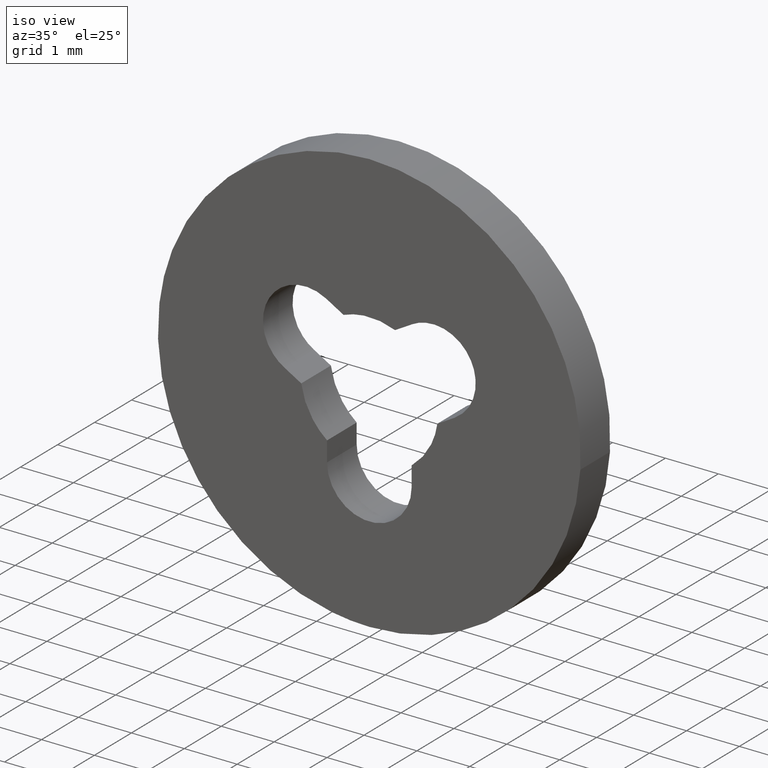
[diagram: clean part render]
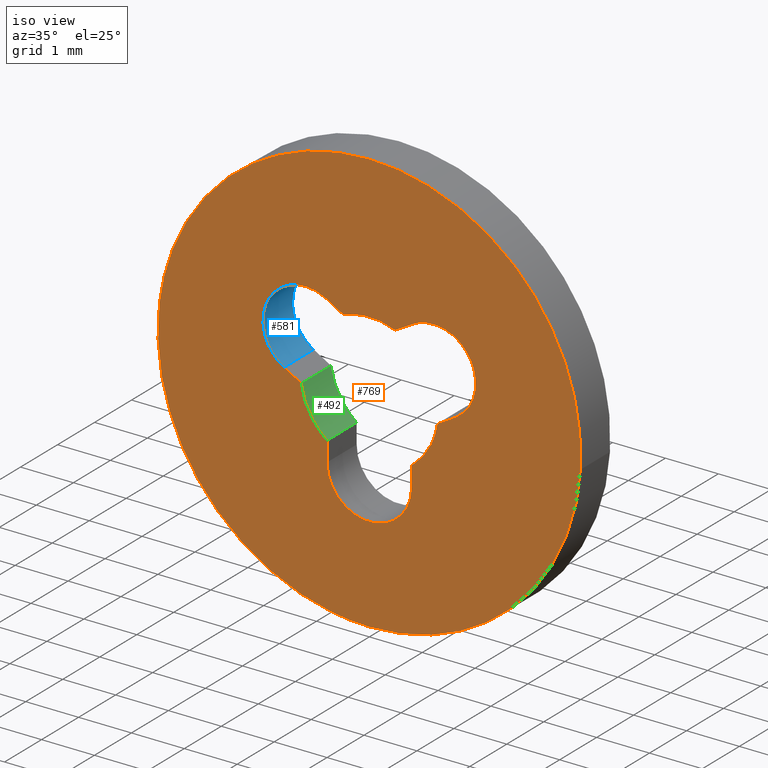
[diagram: same view with three faces highlighted in distinct colors, each labeled with its STEP entity id]
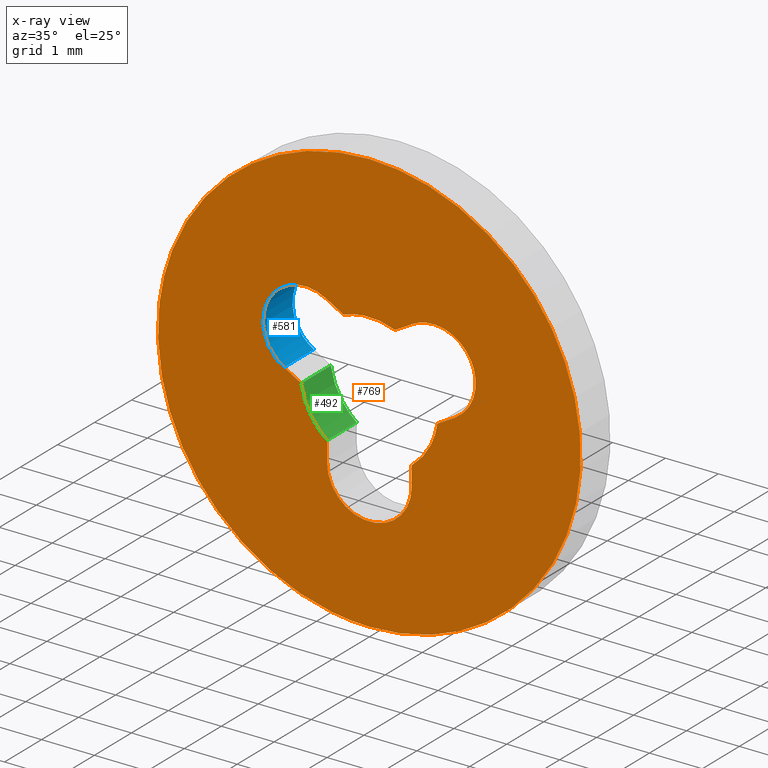
[diagram: x-ray of the same camera — body ghosted, the three highlighted faces saturated]
A machine part, iso view with three faces highlighted in distinct colors.
The next image is the same camera in x-ray (body ghosted, the three faces saturated) — at least one of them is partly hidden behind the body in this view.
Their STEP definitions:

[orange] entity #769 — the highlighted face is a freeform B-spline surface patch.
#66=CARTESIAN_POINT('',(-3.972038406107942,1.940217E-014,0.472134409249084));
#67=VERTEX_POINT('',#66);
#68=CARTESIAN_POINT('',(0.0,0.0,-4.0));
#69=VERTEX_POINT('',#68);
#70=CARTESIAN_POINT('',(-3.972038406107942,1.940217E-014,0.472134409249084));
#71=CARTESIAN_POINT('',(-4.000000000000001,0.0,0.236895200548656));
#72=CARTESIAN_POINT('',(-4.0,0.0,0.0));
#73=CARTESIAN_POINT('',(-4.000000000000000,0.0,-4.000000000000000));
#74=CARTESIAN_POINT('',(0.0,0.0,-4.0));
#82=(BOUNDED_CURVE()B_SPLINE_CURVE(2,(#70,#71,#72,#73,#74),.UNSPECIFIED.,.F.,.U.)B_SPLINE_CURVE_WITH_KNOTS((3,2,3),(0.229562581136241,0.250000000000000,0.500000000000000),.UNSPECIFIED.)CURVE()GEOMETRIC_REPRESENTATION_ITEM()RATIONAL_B_SPLINE_CURVE((0.956026965128767,0.976056074419019,1.0,0.707106781186548,1.0))REPRESENTATION_ITEM(''));
#83=EDGE_CURVE('',#67,#69,#82,.T.);
#124=CARTESIAN_POINT('',(3.992539281071392,1.277450E-014,-0.244192729416499));
#125=VERTEX_POINT('',#124);
#131=CARTESIAN_POINT('',(0.0,0.0,-4.0));
#132=CARTESIAN_POINT('',(3.762825616659059,0.0,-4.000000000000001));
#133=CARTESIAN_POINT('',(3.992539281071392,1.277450E-014,-0.244192729416499));
#141=(BOUNDED_CURVE()B_SPLINE_CURVE(2,(#131,#132,#133),.UNSPECIFIED.,.F.,.U.)B_SPLINE_CURVE_WITH_KNOTS((3,3),(0.500000000000000,0.739333023987528),.UNSPECIFIED.)CURVE()GEOMETRIC_REPRESENTATION_ITEM()RATIONAL_B_SPLINE_CURVE((1.0,0.719603920943743,0.976072174005725))REPRESENTATION_ITEM(''));
#142=EDGE_CURVE('',#69,#125,#141,.T.);
#165=CARTESIAN_POINT('',(0.0,0.0,4.0));
#166=VERTEX_POINT('',#165);
#167=CARTESIAN_POINT('',(0.0,0.0,4.0));
#168=CARTESIAN_POINT('',(-3.552700382076046,0.0,4.0));
#169=CARTESIAN_POINT('',(-3.972038406107942,1.940217E-014,0.472134409249084));
#177=(BOUNDED_CURVE()B_SPLINE_CURVE(2,(#167,#168,#169),.UNSPECIFIED.,.F.,.U.)B_SPLINE_CURVE_WITH_KNOTS((3,3),(0.0,0.229562581136241),.UNSPECIFIED.)CURVE()GEOMETRIC_REPRESENTATION_ITEM()RATIONAL_B_SPLINE_CURVE((1.0,0.731050706767529,0.956026965128767))REPRESENTATION_ITEM(''));
#178=EDGE_CURVE('',#166,#67,#177,.T.);
#180=CARTESIAN_POINT('',(3.992539281071392,1.277450E-014,-0.244192729416499));
#181=CARTESIAN_POINT('',(4.000000000000001,0.0,-0.122210336829911));
#182=CARTESIAN_POINT('',(4.0,0.0,0.0));
#183=CARTESIAN_POINT('',(4.000000000000000,0.0,4.000000000000000));
#184=CARTESIAN_POINT('',(0.0,0.0,4.0));
#192=(BOUNDED_CURVE()B_SPLINE_CURVE(2,(#180,#181,#182,#183,#184),.UNSPECIFIED.,.F.,.U.)B_SPLINE_CURVE_WITH_KNOTS((3,2,3),(0.739333023987528,0.750000000000000,1.0),.UNSPECIFIED.)CURVE()GEOMETRIC_REPRESENTATION_ITEM()RATIONAL_B_SPLINE_CURVE((0.976072174005725,0.987502860242804,1.0,0.707106781186548,1.0))REPRESENTATION_ITEM(''));
#193=EDGE_CURVE('',#125,#166,#192,.T.);
#235=CARTESIAN_POINT('',(1.287408869895386,0.0,-0.180494880023472));
#236=VERTEX_POINT('',#235);
#237=CARTESIAN_POINT('',(1.612399990874480,0.0,0.007099994732456));
#238=VERTEX_POINT('',#237);
#239=CARTESIAN_POINT('',(1.287408869895386,0.0,-0.180494880023472));
#240=CARTESIAN_POINT('',(1.612399990874480,0.0,0.007099994732456));
#241=QUASI_UNIFORM_CURVE('',1,(#239,#240),.UNSPECIFIED.,.F.,.U.);
#242=EDGE_CURVE('',#236,#238,#241,.T.);
#280=CARTESIAN_POINT('',(0.800000000000010,0.0,-1.024700000000000));
#281=VERTEX_POINT('',#280);
#282=CARTESIAN_POINT('',(0.800000000000010,0.0,-1.024700000000000));
#283=CARTESIAN_POINT('',(1.214413189115295,0.0,-0.701158403634234));
#284=CARTESIAN_POINT('',(1.287408869895386,0.0,-0.180494880023472));
#292=(BOUNDED_CURVE()B_SPLINE_CURVE(2,(#282,#283,#284),.UNSPECIFIED.,.F.,.U.)CURVE()GEOMETRIC_REPRESENTATION_ITEM()QUASI_UNIFORM_CURVE()RATIONAL_B_SPLINE_CURVE((1.0,0.927054981489884,1.0))REPRESENTATION_ITEM(''));
#293=EDGE_CURVE('',#281,#236,#292,.T.);
#324=CARTESIAN_POINT('',(0.799999999999988,0.0,-1.399999860373652));
#325=VERTEX_POINT('',#324);
#326=CARTESIAN_POINT('',(0.799999999999988,0.0,-1.399999860373652));
#327=CARTESIAN_POINT('',(0.800000000000010,0.0,-1.024700000000000));
#328=QUASI_UNIFORM_CURVE('',1,(#326,#327),.UNSPECIFIED.,.F.,.U.);
#329=EDGE_CURVE('',#325,#281,#328,.T.);
#365=CARTESIAN_POINT('',(-0.799999999999990,0.0,-1.400000000000000));
#366=VERTEX_POINT('',#365);
#367=CARTESIAN_POINT('',(-0.799999999999990,0.0,-1.400000000000000));
#368=CARTESIAN_POINT('',(-0.800000000000000,0.0,-1.861880246379778));
#369=CARTESIAN_POINT('',(-0.399999959693345,0.0,-2.092820346298607));
#370=CARTESIAN_POINT('',(0.000000080613311,0.0,-2.323760446217437));
#371=CARTESIAN_POINT('',(0.400000080613307,0.0,-2.092820276485431));
#372=CARTESIAN_POINT('',(0.800000080613303,0.0,-1.861880106753424));
#373=CARTESIAN_POINT('',(0.799999999999988,0.0,-1.399999860373652));
#381=(BOUNDED_CURVE()B_SPLINE_CURVE(2,(#367,#368,#369,#370,#371,#372,#373),.UNSPECIFIED.,.F.,.U.)B_SPLINE_CURVE_WITH_KNOTS((3,2,2,3),(0.0,0.333333333333333,0.666666666666667,1.0),.UNSPECIFIED.)CURVE()GEOMETRIC_REPRESENTATION_ITEM()RATIONAL_B_SPLINE_CURVE((1.0,0.866025389240027,1.0,0.866025389240027,1.0,0.866025389240027,1.0))REPRESENTATION_ITEM(''));
#382=EDGE_CURVE('',#366,#325,#381,.T.);
#417=CARTESIAN_POINT('',(-0.800002281232923,0.0,-1.024693295587572));
#418=VERTEX_POINT('',#417);
#419=CARTESIAN_POINT('',(-0.800002281232923,0.0,-1.024693295587572));
#420=CARTESIAN_POINT('',(-0.799999999999990,0.0,-1.400000000000000));
#421=QUASI_UNIFORM_CURVE('',1,(#419,#420),.UNSPECIFIED.,.F.,.U.);
#422=EDGE_CURVE('',#418,#366,#421,.T.);
#454=CARTESIAN_POINT('',(-1.287400062812804,0.0,-0.180557686819436));
#455=VERTEX_POINT('',#454);
#456=CARTESIAN_POINT('',(-1.287400062812805,0.0,-0.180557686819436));
#457=CARTESIAN_POINT('',(-1.214383390528302,0.0,-0.701176166936854));
#458=CARTESIAN_POINT('',(-0.800002281232923,0.0,-1.024693295587572));
#466=(BOUNDED_CURVE()B_SPLINE_CURVE(2,(#456,#457,#458),.UNSPECIFIED.,.F.,.U.)CURVE()GEOMETRIC_REPRESENTATION_ITEM()QUASI_UNIFORM_CURVE()RATIONAL_B_SPLINE_CURVE((1.0,0.927064980880653,1.0))REPRESENTATION_ITEM(''));
#467=EDGE_CURVE('',#455,#418,#466,.T.);
#498=CARTESIAN_POINT('',(-1.612500000000000,0.0,0.007099999999994));
#499=VERTEX_POINT('',#498);
#500=CARTESIAN_POINT('',(-1.612500000000000,0.0,0.007099999999994));
#501=CARTESIAN_POINT('',(-1.287400062812804,0.0,-0.180557686819436));
#502=QUASI_UNIFORM_CURVE('',1,(#500,#501),.UNSPECIFIED.,.F.,.U.);
#503=EDGE_CURVE('',#499,#455,#502,.T.);
#539=CARTESIAN_POINT('',(-0.817007166694730,0.0,1.395403062118780));
#540=VERTEX_POINT('',#539);
#541=CARTESIAN_POINT('',(-0.817007166694730,0.0,1.395403062118780));
#542=CARTESIAN_POINT('',(-1.510215076494561,0.0,1.789684260389432));
#543=CARTESIAN_POINT('',(-1.906699946760339,0.0,1.097734394308717));
#544=CARTESIAN_POINT('',(-2.303184817026117,0.0,0.405784528228002));
#545=CARTESIAN_POINT('',(-1.612499999999997,0.0,0.007099999999999));
#553=(BOUNDED_CURVE()B_SPLINE_CURVE(2,(#541,#542,#543,#544,#545),.UNSPECIFIED.,.F.,.U.)B_SPLINE_CURVE_WITH_KNOTS((3,2,3),(0.0,0.500000000000000,1.0),.UNSPECIFIED.)CURVE()GEOMETRIC_REPRESENTATION_ITEM()RATIONAL_B_SPLINE_CURVE((1.0,0.708230833594024,1.0,0.708230833594024,1.0))REPRESENTATION_ITEM(''));
#554=EDGE_CURVE('',#540,#499,#553,.T.);
#587=CARTESIAN_POINT('',(-0.487532842886897,0.0,1.205118968030384));
#588=VERTEX_POINT('',#587);
#589=CARTESIAN_POINT('',(-0.487532842886897,0.0,1.205118968030384));
#590=CARTESIAN_POINT('',(-0.817007166694730,0.0,1.395403062118780));
#591=QUASI_UNIFORM_CURVE('',1,(#589,#590),.UNSPECIFIED.,.F.,.U.);
#592=EDGE_CURVE('',#588,#540,#591,.T.);
#624=CARTESIAN_POINT('',(0.487474034111251,0.0,1.205142757546716));
#625=VERTEX_POINT('',#624);
#626=CARTESIAN_POINT('',(0.487474034111252,0.0,1.205142757546716));
#627=CARTESIAN_POINT('',(-0.000034216093908,0.0,1.402337332132885));
#628=CARTESIAN_POINT('',(-0.487532842886897,0.0,1.205118968030385));
#636=(BOUNDED_CURVE()B_SPLINE_CURVE(2,(#626,#627,#628),.UNSPECIFIED.,.F.,.U.)CURVE()GEOMETRIC_REPRESENTATION_ITEM()QUASI_UNIFORM_CURVE()RATIONAL_B_SPLINE_CURVE((1.0,0.927023740882519,1.0))REPRESENTATION_ITEM(''));
#637=EDGE_CURVE('',#625,#588,#636,.T.);
#668=CARTESIAN_POINT('',(0.816907166694791,0.0,1.395403062118820));
#669=VERTEX_POINT('',#668);
#670=CARTESIAN_POINT('',(0.816907166694791,0.0,1.395403062118820));
#671=CARTESIAN_POINT('',(0.487474034111251,0.0,1.205142757546716));
#672=QUASI_UNIFORM_CURVE('',1,(#670,#671),.UNSPECIFIED.,.F.,.U.);
#673=EDGE_CURVE('',#669,#625,#672,.T.);
#709=CARTESIAN_POINT('',(1.612399990874479,0.0,0.007099994732456));
#710=CARTESIAN_POINT('',(2.303084817699688,0.0,0.405784516489318));
#711=CARTESIAN_POINT('',(1.906599949379616,0.0,1.097734389737577));
#712=CARTESIAN_POINT('',(1.510115081059544,0.0,1.789684262985836));
#713=CARTESIAN_POINT('',(0.816907166694791,0.0,1.395403062118821));
#721=(BOUNDED_CURVE()B_SPLINE_CURVE(2,(#709,#710,#711,#712,#713),.UNSPECIFIED.,.F.,.U.)B_SPLINE_CURVE_WITH_KNOTS((3,2,3),(0.0,0.500000000000000,1.0),.UNSPECIFIED.)CURVE()GEOMETRIC_REPRESENTATION_ITEM()RATIONAL_B_SPLINE_CURVE((1.0,0.708230831269535,1.0,0.708230831269535,1.0))REPRESENTATION_ITEM(''));
#722=EDGE_CURVE('',#238,#669,#721,.T.);
#744=CARTESIAN_POINT('',(-4.399527157748937,0.0,4.399599984494448));
#745=CARTESIAN_POINT('',(4.399502624477148,0.0,4.399599984494448));
#746=CARTESIAN_POINT('',(-4.399527157748937,0.0,-4.399600199071169));
#747=CARTESIAN_POINT('',(4.399502624477148,0.0,-4.399600199071169));
#748=B_SPLINE_SURFACE_WITH_KNOTS('',1,1,((#744,#746),(#745,#747)),.UNSPECIFIED.,.F.,.F.,.U.,(2,2),(2,2),(0.0,8.799029782226086),(0.0,8.799200183565617),.UNSPECIFIED.);
#749=ORIENTED_EDGE('',*,*,#178,.T.);
#750=ORIENTED_EDGE('',*,*,#83,.T.);
#751=ORIENTED_EDGE('',*,*,#142,.T.);
#752=ORIENTED_EDGE('',*,*,#193,.T.);
#753=EDGE_LOOP('',(#749,#750,#751,#752));
#754=FACE_OUTER_BOUND('',#753,.T.);
#755=ORIENTED_EDGE('',*,*,#722,.F.);
#756=ORIENTED_EDGE('',*,*,#242,.F.);
#757=ORIENTED_EDGE('',*,*,#293,.F.);
#758=ORIENTED_EDGE('',*,*,#329,.F.);
#759=ORIENTED_EDGE('',*,*,#382,.F.);
#760=ORIENTED_EDGE('',*,*,#422,.F.);
#761=ORIENTED_EDGE('',*,*,#467,.F.);
#762=ORIENTED_EDGE('',*,*,#503,.F.);
#763=ORIENTED_EDGE('',*,*,#554,.F.);
#764=ORIENTED_EDGE('',*,*,#592,.F.);
#765=ORIENTED_EDGE('',*,*,#637,.F.);
#766=ORIENTED_EDGE('',*,*,#673,.F.);
#767=EDGE_LOOP('',(#755,#756,#757,#758,#759,#760,#761,#762,#763,#764,#765,#766));
#768=FACE_BOUND('',#767,.T.);
#769=ADVANCED_FACE('',(#754,#768),#748,.F.);

[blue] entity #581 — the highlighted face is a freeform B-spline surface patch.
#498=CARTESIAN_POINT('',(-1.612500000000000,0.0,0.007099999999994));
#499=VERTEX_POINT('',#498);
#506=CARTESIAN_POINT('',(-1.612500000000000,0.800000000000023,0.007099999999994));
#507=VERTEX_POINT('',#506);
#513=CARTESIAN_POINT('',(-1.612500000000000,0.800000000000023,0.007099999999994));
#514=CARTESIAN_POINT('',(-1.612500000000000,0.0,0.007099999999994));
#515=QUASI_UNIFORM_CURVE('',1,(#513,#514),.UNSPECIFIED.,.F.,.U.);
#516=EDGE_CURVE('',#507,#499,#515,.T.);
#521=CARTESIAN_POINT('',(-1.589743198719782,0.820000000000024,-0.005546802408356));
#522=CARTESIAN_POINT('',(-1.589743198719782,-0.020500000000001,-0.005546802408356));
#523=CARTESIAN_POINT('',(-2.333219605951958,0.820000000000024,0.391937266101206));
#524=CARTESIAN_POINT('',(-2.333219605951958,-0.020500000000001,0.391937266101206));
#525=CARTESIAN_POINT('',(-1.897369726827335,0.820000000000024,1.113592055939692));
#526=CARTESIAN_POINT('',(-1.897369726827335,-0.020500000000001,1.113592055939692));
#527=CARTESIAN_POINT('',(-1.461519847702711,0.820000000000024,1.835246845778179));
#528=CARTESIAN_POINT('',(-1.461519847702711,-0.020500000000001,1.835246845778179));
#529=CARTESIAN_POINT('',(-0.763664680875252,0.820000000000024,1.362225790261621));
#530=CARTESIAN_POINT('',(-0.763664680875252,-0.020500000000001,1.362225790261621));
#538=(BOUNDED_SURFACE()B_SPLINE_SURFACE(1,2,((#521,#523,#525,#527,#529),(#522,#524,#526,#528,#530)),.UNSPECIFIED.,.F.,.F.,.U.)B_SPLINE_SURFACE_WITH_KNOTS((2,2),(3,2,3),(0.0,1.0),(0.0,1.0,2.0),.UNSPECIFIED.)GEOMETRIC_REPRESENTATION_ITEM()RATIONAL_B_SPLINE_SURFACE(((1.0,0.688354575693754,1.0,0.688354575693754,1.0),(1.0,0.688354575693754,1.0,0.688354575693754,1.0)))REPRESENTATION_ITEM('')SURFACE());
#539=CARTESIAN_POINT('',(-0.817007166694730,0.0,1.395403062118780));
#540=VERTEX_POINT('',#539);
#541=CARTESIAN_POINT('',(-0.817007166694730,0.0,1.395403062118780));
#542=CARTESIAN_POINT('',(-1.510215076494561,0.0,1.789684260389432));
#543=CARTESIAN_POINT('',(-1.906699946760339,0.0,1.097734394308717));
#544=CARTESIAN_POINT('',(-2.303184817026117,0.0,0.405784528228002));
#545=CARTESIAN_POINT('',(-1.612499999999997,0.0,0.007099999999999));
#553=(BOUNDED_CURVE()B_SPLINE_CURVE(2,(#541,#542,#543,#544,#545),.UNSPECIFIED.,.F.,.U.)B_SPLINE_CURVE_WITH_KNOTS((3,2,3),(0.0,0.500000000000000,1.0),.UNSPECIFIED.)CURVE()GEOMETRIC_REPRESENTATION_ITEM()RATIONAL_B_SPLINE_CURVE((1.0,0.708230833594024,1.0,0.708230833594024,1.0))REPRESENTATION_ITEM(''));
#554=EDGE_CURVE('',#540,#499,#553,.T.);
#555=ORIENTED_EDGE('',*,*,#554,.T.);
#556=ORIENTED_EDGE('',*,*,#516,.F.);
#557=CARTESIAN_POINT('',(-0.817007166694730,0.800000000000023,1.395403062118780));
#558=VERTEX_POINT('',#557);
#559=CARTESIAN_POINT('',(-0.817007166694730,0.800000000000023,1.395403062118780));
#560=CARTESIAN_POINT('',(-1.510215076494561,0.800000000000023,1.789684260389432));
#561=CARTESIAN_POINT('',(-1.906699946760339,0.800000000000023,1.097734394308717));
#562=CARTESIAN_POINT('',(-2.303184817026117,0.800000000000023,0.405784528228002));
#563=CARTESIAN_POINT('',(-1.612499999999997,0.800000000000023,0.007099999999999));
#571=(BOUNDED_CURVE()B_SPLINE_CURVE(2,(#559,#560,#561,#562,#563),.UNSPECIFIED.,.F.,.U.)B_SPLINE_CURVE_WITH_KNOTS((3,2,3),(0.0,0.500000000000000,1.0),.UNSPECIFIED.)CURVE()GEOMETRIC_REPRESENTATION_ITEM()RATIONAL_B_SPLINE_CURVE((1.0,0.708230833594024,1.0,0.708230833594024,1.0))REPRESENTATION_ITEM(''));
#572=EDGE_CURVE('',#558,#507,#571,.T.);
#573=ORIENTED_EDGE('',*,*,#572,.F.);
#574=CARTESIAN_POINT('',(-0.817007166694730,0.800000000000023,1.395403062118780));
#575=CARTESIAN_POINT('',(-0.817007166694730,0.0,1.395403062118780));
#576=QUASI_UNIFORM_CURVE('',1,(#574,#575),.UNSPECIFIED.,.F.,.U.);
#577=EDGE_CURVE('',#558,#540,#576,.T.);
#578=ORIENTED_EDGE('',*,*,#577,.T.);
#579=EDGE_LOOP('',(#555,#556,#573,#578));
#580=FACE_OUTER_BOUND('',#579,.T.);
#581=ADVANCED_FACE('',(#580),#538,.F.);

[green] entity #492 — the highlighted face is a freeform B-spline surface patch.
#417=CARTESIAN_POINT('',(-0.800002281232923,0.0,-1.024693295587572));
#418=VERTEX_POINT('',#417);
#425=CARTESIAN_POINT('',(-0.800002281232923,0.800000000000023,-1.024693295587572));
#426=VERTEX_POINT('',#425);
#432=CARTESIAN_POINT('',(-0.800002281232923,0.800000000000023,-1.024693295587572));
#433=CARTESIAN_POINT('',(-0.800002281232923,0.0,-1.024693295587572));
#434=QUASI_UNIFORM_CURVE('',1,(#432,#433),.UNSPECIFIED.,.F.,.U.);
#435=EDGE_CURVE('',#426,#418,#434,.T.);
#440=CARTESIAN_POINT('',(-0.761362592940663,0.820000000000024,-1.053720552172477));
#441=CARTESIAN_POINT('',(-0.761362592940663,-0.020500000000001,-1.053720552172477));
#442=CARTESIAN_POINT('',(-1.233951651350491,0.820000000000024,-0.712252759630648));
#443=CARTESIAN_POINT('',(-1.233951651350491,-0.020500000000001,-0.712252759630648));
#444=CARTESIAN_POINT('',(-1.293257347522966,0.820000000000024,-0.132232496300499));
#445=CARTESIAN_POINT('',(-1.293257347522966,-0.020500000000001,-0.132232496300499));
#453=(BOUNDED_SURFACE()B_SPLINE_SURFACE(1,2,((#440,#442,#444),(#441,#443,#445)),.UNSPECIFIED.,.F.,.F.,.U.)B_SPLINE_SURFACE_WITH_KNOTS((2,2),(3,3),(0.0,1.0),(0.006756375219114,0.952489124004357),.UNSPECIFIED.)GEOMETRIC_REPRESENTATION_ITEM()RATIONAL_B_SPLINE_SURFACE(((0.998692552950375,0.907809172694319,0.991183268278192),(0.998692552950375,0.907809172694319,0.991183268278192)))REPRESENTATION_ITEM('')SURFACE());
#454=CARTESIAN_POINT('',(-1.287400062812804,0.0,-0.180557686819436));
#455=VERTEX_POINT('',#454);
#456=CARTESIAN_POINT('',(-1.287400062812805,0.0,-0.180557686819436));
#457=CARTESIAN_POINT('',(-1.214383390528302,0.0,-0.701176166936854));
#458=CARTESIAN_POINT('',(-0.800002281232923,0.0,-1.024693295587572));
#466=(BOUNDED_CURVE()B_SPLINE_CURVE(2,(#456,#457,#458),.UNSPECIFIED.,.F.,.U.)CURVE()GEOMETRIC_REPRESENTATION_ITEM()QUASI_UNIFORM_CURVE()RATIONAL_B_SPLINE_CURVE((1.0,0.927064980880653,1.0))REPRESENTATION_ITEM(''));
#467=EDGE_CURVE('',#455,#418,#466,.T.);
#468=ORIENTED_EDGE('',*,*,#467,.T.);
#469=ORIENTED_EDGE('',*,*,#435,.F.);
#470=CARTESIAN_POINT('',(-1.287400062812804,0.800000000000023,-0.180557686819436));
#471=VERTEX_POINT('',#470);
#472=CARTESIAN_POINT('',(-1.287400062812805,0.800000000000023,-0.180557686819436));
#473=CARTESIAN_POINT('',(-1.214383390528302,0.800000000000023,-0.701176166936854));
#474=CARTESIAN_POINT('',(-0.800002281232923,0.800000000000023,-1.024693295587572));
#482=(BOUNDED_CURVE()B_SPLINE_CURVE(2,(#472,#473,#474),.UNSPECIFIED.,.F.,.U.)CURVE()GEOMETRIC_REPRESENTATION_ITEM()QUASI_UNIFORM_CURVE()RATIONAL_B_SPLINE_CURVE((1.0,0.927064980880653,1.0))REPRESENTATION_ITEM(''));
#483=EDGE_CURVE('',#471,#426,#482,.T.);
#484=ORIENTED_EDGE('',*,*,#483,.F.);
#485=CARTESIAN_POINT('',(-1.287400062812804,0.800000000000023,-0.180557686819436));
#486=CARTESIAN_POINT('',(-1.287400062812804,0.0,-0.180557686819436));
#487=QUASI_UNIFORM_CURVE('',1,(#485,#486),.UNSPECIFIED.,.F.,.U.);
#488=EDGE_CURVE('',#471,#455,#487,.T.);
#489=ORIENTED_EDGE('',*,*,#488,.T.);
#490=EDGE_LOOP('',(#468,#469,#484,#489));
#491=FACE_OUTER_BOUND('',#490,.T.);
#492=ADVANCED_FACE('',(#491),#453,.F.);